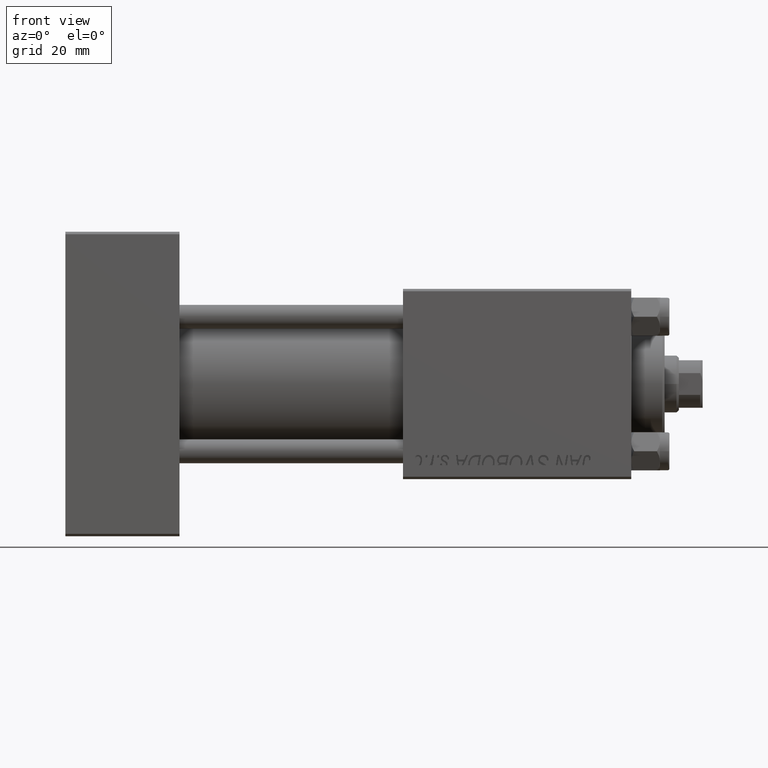
[diagram: clean part render]
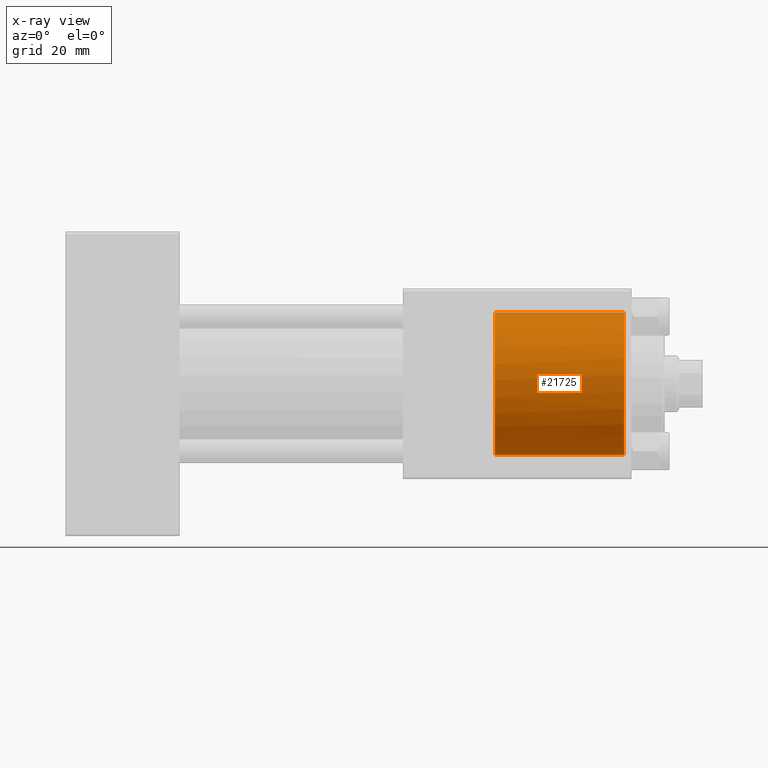
[diagram: x-ray — body ghosted, one internal face saturated and labeled with its STEP entity id]
A machine part, front view, then the same camera in x-ray: the body is ghosted and one INTERNAL B-rep face — a face not visible from any outside direction — is saturated and labeled: STEP entity #21725.
In plain terms, the highlighted cylindrical surface (partial cylindrical patch) has radius 15 mm, axis along (1, 0, 0).
Its self-contained STEP definition (entity closure, byte-faithful):
#52 = VERTEX_POINT ( 'NONE', #15909 ) ;
#765 = CARTESIAN_POINT ( 'NONE',  ( 90.30000000000001137, -1.899052395280420136, 14.87930105885285670 ) ) ;
#2004 = CARTESIAN_POINT ( 'NONE',  ( 117.5000000000000142, 1.836970198721029589E-15, 15.00000000000000000 ) ) ;
#6224 = CIRCLE ( 'NONE', #7841, 15.00000000000000000 ) ;
#7841 = AXIS2_PLACEMENT_3D ( 'NONE', #20712, #36113, #24756 ) ;
#8388 = VERTEX_POINT ( 'NONE', #26086 ) ;
#9373 = ORIENTED_EDGE ( 'NONE', *, *, #12834, .F. ) ;
#9767 = B_SPLINE_CURVE_WITH_KNOTS ( 'NONE', 3,
 ( #13385, #19791, #28813, #13645 ),
 .UNSPECIFIED., .F., .F.,
 ( 4, 4 ),
 ( 0.000000000000000000, 0.001923267627926022365 ),
 .UNSPECIFIED. ) ;
#10731 = VERTEX_POINT ( 'NONE', #765 ) ;
#11765 = VECTOR ( 'NONE', #17232, 1000.000000000000000 ) ;
#12572 = DIRECTION ( 'NONE',  ( 0.000000000000000000, 0.000000000000000000, 1.000000000000000000 ) ) ;
#12834 = EDGE_CURVE ( 'NONE', #10731, #8388, #6224, .T. ) ;
#13385 = CARTESIAN_POINT ( 'NONE',  ( 90.30000000000001137, -1.899052395280420136, 14.87930105885285670 ) ) ;
#13645 = CARTESIAN_POINT ( 'NONE',  ( 90.58000000000154728, 1.837042777381032933E-15, 15.00000000000000000 ) ) ;
#15126 = LINE ( 'NONE', #35056, #34028 ) ;
#15867 = EDGE_CURVE ( 'NONE', #30629, #52, #40872, .T. ) ;
#15909 = CARTESIAN_POINT ( 'NONE',  ( 117.5000000000000142, 0.000000000000000000, -15.00000000000000000 ) ) ;
#16725 = LINE ( 'NONE', #35411, #11765 ) ;
#17232 = DIRECTION ( 'NONE',  ( 1.000000000000000000, -0.000000000000000000, -0.000000000000000000 ) ) ;
#19068 = EDGE_CURVE ( 'NONE', #46240, #30629, #16725, .T. ) ;
#19791 = CARTESIAN_POINT ( 'NONE',  ( 90.48627106246553353, -1.281108574220369167, 14.95816952780117504 ) ) ;
#19802 = ORIENTED_EDGE ( 'NONE', *, *, #19068, .T. ) ;
#20712 = CARTESIAN_POINT ( 'NONE',  ( 90.30000000000001137, 0.000000000000000000, 0.000000000000000000 ) ) ;
#20743 = ORIENTED_EDGE ( 'NONE', *, *, #40981, .F. ) ;
#21725 = ADVANCED_FACE ( 'NONE', ( #40634 ), #41133, .F. ) ;
#23426 = CARTESIAN_POINT ( 'NONE',  ( 90.58000000000154728, 1.837042777381032933E-15, 15.00000000000000000 ) ) ;
#23493 = ORIENTED_EDGE ( 'NONE', *, *, #35182, .T. ) ;
#24731 = AXIS2_PLACEMENT_3D ( 'NONE', #46914, #39582, #12572 ) ;
#24756 = DIRECTION ( 'NONE',  ( 0.000000000000000000, 0.000000000000000000, -1.000000000000000000 ) ) ;
#26086 = CARTESIAN_POINT ( 'NONE',  ( 90.30000000000001137, 0.000000000000000000, -15.00000000000000000 ) ) ;
#28813 = CARTESIAN_POINT ( 'NONE',  ( 90.58000000000154728, -0.6482402319151109316, 15.00000000000000000 ) ) ;
#30629 = VERTEX_POINT ( 'NONE', #2004 ) ;
#33323 = CARTESIAN_POINT ( 'NONE',  ( 90.30000000000001137, 0.000000000000000000, 0.000000000000000000 ) ) ;
#33378 = DIRECTION ( 'NONE',  ( 1.000000000000000000, -0.000000000000000000, -0.000000000000000000 ) ) ;
#34028 = VECTOR ( 'NONE', #33378, 1000.000000000000000 ) ;
#35056 = CARTESIAN_POINT ( 'NONE',  ( 90.30000000000001137, 0.000000000000000000, -15.00000000000000000 ) ) ;
#35182 = EDGE_CURVE ( 'NONE', #10731, #46240, #9767, .T. ) ;
#35411 = CARTESIAN_POINT ( 'NONE',  ( 90.30000000000001137, 1.836970198721029589E-15, 15.00000000000000000 ) ) ;
#36113 = DIRECTION ( 'NONE',  ( 1.000000000000000000, 0.000000000000000000, 0.000000000000000000 ) ) ;
#39582 = DIRECTION ( 'NONE',  ( 1.000000000000000000, 0.000000000000000000, 0.000000000000000000 ) ) ;
#40634 = FACE_OUTER_BOUND ( 'NONE', #45005, .T. ) ;
#40872 = CIRCLE ( 'NONE', #24731, 15.00000000000000000 ) ;
#40981 = EDGE_CURVE ( 'NONE', #8388, #52, #15126, .T. ) ;
#41133 = CYLINDRICAL_SURFACE ( 'NONE', #48097, 15.00000000000000000 ) ;
#41569 = ORIENTED_EDGE ( 'NONE', *, *, #15867, .T. ) ;
#44168 = DIRECTION ( 'NONE',  ( 0.000000000000000000, 0.000000000000000000, -1.000000000000000000 ) ) ;
#44671 = DIRECTION ( 'NONE',  ( 1.000000000000000000, -0.000000000000000000, -0.000000000000000000 ) ) ;
#45005 = EDGE_LOOP ( 'NONE', ( #23493, #19802, #41569, #20743, #9373 ) ) ;
#46240 = VERTEX_POINT ( 'NONE', #23426 ) ;
#46914 = CARTESIAN_POINT ( 'NONE',  ( 117.5000000000000142, 0.000000000000000000, 0.000000000000000000 ) ) ;
#48097 = AXIS2_PLACEMENT_3D ( 'NONE', #33323, #44671, #44168 ) ;